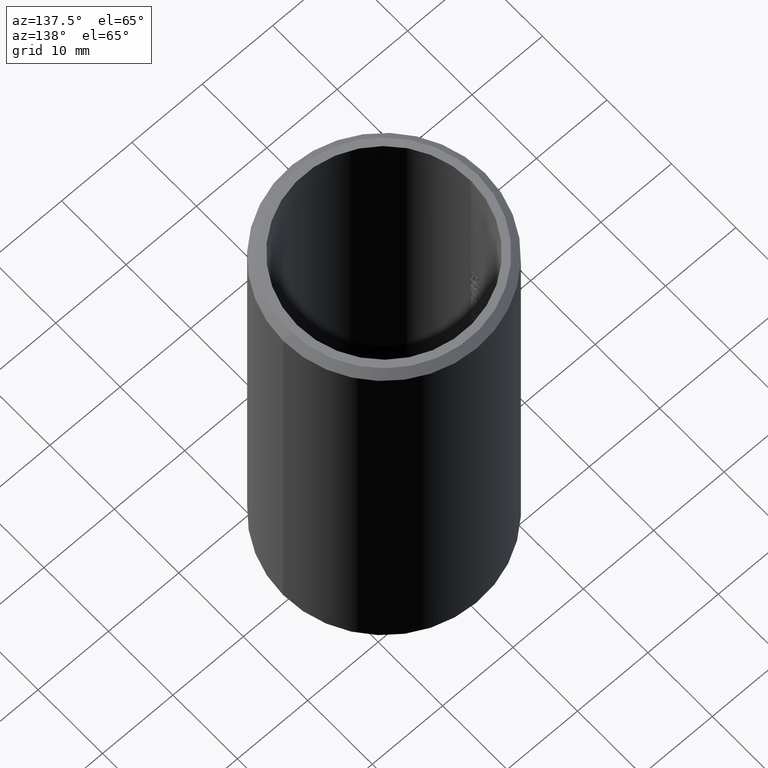
[diagram: clean part render]
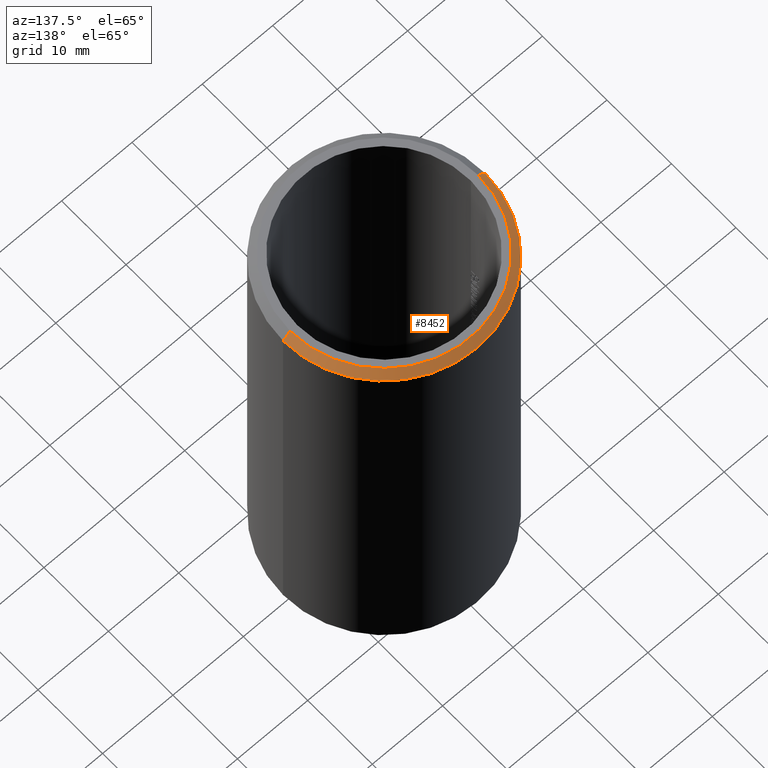
[diagram: same view with one face highlighted and labeled with its STEP entity id]
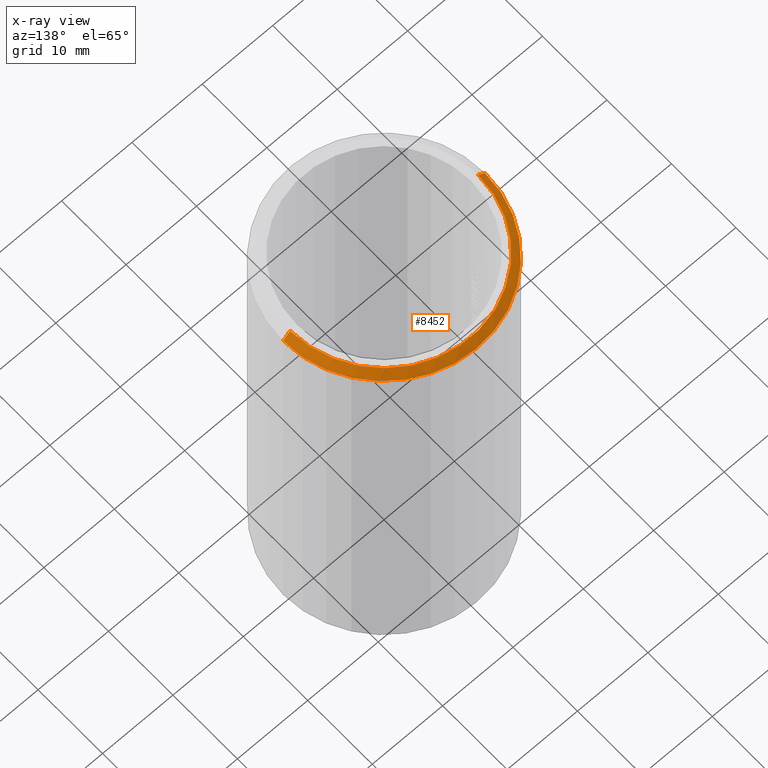
[diagram: x-ray of the same camera — body ghosted, the highlighted face saturated]
A machine part, auxiliary view. The second image highlights one B-rep face of the part: STEP entity #8452.
The next image is the same camera in x-ray: the body ghosted, the highlighted face saturated — about 0% of this face is hidden behind the body in this view.
In plain terms, the highlighted conical surface has half-angle 45 deg.
Its self-contained STEP definition (entity closure, byte-faithful):
#239 = DIRECTION ( 'NONE',  ( -0.7071067811865512400, 0.0000000000000000000, -0.7071067811865439100 ) ) ;
#343 = DIRECTION ( 'NONE',  ( 0.7071067811865512400, 8.659560562354978500E-017, -0.7071067811865439100 ) ) ;
#896 = DIRECTION ( 'NONE',  ( -1.000000000000000000, 0.0000000000000000000, 0.0000000000000000000 ) ) ;
#1088 = CARTESIAN_POINT ( 'NONE',  ( 13.35000000000000000, 1.696135816819084400E-015, 32.50000000000000000 ) ) ;
#1151 = VERTEX_POINT ( 'NONE', #1088 ) ;
#1681 = AXIS2_PLACEMENT_3D ( 'NONE', #14139, #9708, #13072 ) ;
#1891 = CIRCLE ( 'NONE', #1681, 14.35000000000000300 ) ;
#2718 = CIRCLE ( 'NONE', #9297, 13.35000000000000000 ) ;
#2740 = DIRECTION ( 'NONE',  ( 0.0000000000000000000, 0.0000000000000000000, 1.000000000000000000 ) ) ;
#3302 = VERTEX_POINT ( 'NONE', #10549 ) ;
#3430 = AXIS2_PLACEMENT_3D ( 'NONE', #12965, #6346, #896 ) ;
#3749 = VERTEX_POINT ( 'NONE', #12428 ) ;
#3928 = FACE_OUTER_BOUND ( 'NONE', #5669, .T. ) ;
#3968 = ORIENTED_EDGE ( 'NONE', *, *, #4681, .T. ) ;
#4681 = EDGE_CURVE ( 'NONE', #1151, #3749, #9599, .T. ) ;
#4692 = CARTESIAN_POINT ( 'NONE',  ( 13.35000000000000000, 1.634903476861716400E-015, 32.50000000000000000 ) ) ;
#5117 = VECTOR ( 'NONE', #239, 1000.000000000000000 ) ;
#5669 = EDGE_LOOP ( 'NONE', ( #11993, #3968, #8981, #8629 ) ) ;
#5954 = CARTESIAN_POINT ( 'NONE',  ( -14.35000000000000300, 0.0000000000000000000, 31.50000000000000700 ) ) ;
#6346 = DIRECTION ( 'NONE',  ( 0.0000000000000000000, 0.0000000000000000000, -1.000000000000000000 ) ) ;
#6647 = CONICAL_SURFACE ( 'NONE', #3430, 13.35000000000000000, 0.7853981633974533900 ) ;
#6835 = LINE ( 'NONE', #11101, #5117 ) ;
#7004 = DIRECTION ( 'NONE',  ( 1.000000000000000000, 0.0000000000000000000, 0.0000000000000000000 ) ) ;
#7322 = EDGE_CURVE ( 'NONE', #3302, #10517, #6835, .T. ) ;
#8334 = EDGE_CURVE ( 'NONE', #1151, #3302, #2718, .T. ) ;
#8452 = ADVANCED_FACE ( 'NONE', ( #3928 ), #6647, .T. ) ;
#8629 = ORIENTED_EDGE ( 'NONE', *, *, #7322, .F. ) ;
#8981 = ORIENTED_EDGE ( 'NONE', *, *, #10952, .F. ) ;
#9297 = AXIS2_PLACEMENT_3D ( 'NONE', #10323, #2740, #7004 ) ;
#9599 = LINE ( 'NONE', #4692, #11785 ) ;
#9708 = DIRECTION ( 'NONE',  ( 0.0000000000000000000, 0.0000000000000000000, -1.000000000000000000 ) ) ;
#10323 = CARTESIAN_POINT ( 'NONE',  ( 0.0000000000000000000, 0.0000000000000000000, 32.50000000000000000 ) ) ;
#10517 = VERTEX_POINT ( 'NONE', #5954 ) ;
#10549 = CARTESIAN_POINT ( 'NONE',  ( -13.35000000000000000, 0.0000000000000000000, 32.50000000000000000 ) ) ;
#10952 = EDGE_CURVE ( 'NONE', #10517, #3749, #1891, .T. ) ;
#11101 = CARTESIAN_POINT ( 'NONE',  ( -13.35000000000000000, 0.0000000000000000000, 32.50000000000000000 ) ) ;
#11785 = VECTOR ( 'NONE', #343, 1000.000000000000000 ) ;
#11993 = ORIENTED_EDGE ( 'NONE', *, *, #8334, .F. ) ;
#12428 = CARTESIAN_POINT ( 'NONE',  ( 14.35000000000000300, 1.757368156776452400E-015, 31.50000000000000700 ) ) ;
#12965 = CARTESIAN_POINT ( 'NONE',  ( 0.0000000000000000000, 0.0000000000000000000, 32.50000000000000000 ) ) ;
#13072 = DIRECTION ( 'NONE',  ( 1.000000000000000000, 0.0000000000000000000, 0.0000000000000000000 ) ) ;
#14139 = CARTESIAN_POINT ( 'NONE',  ( 0.0000000000000000000, 0.0000000000000000000, 31.50000000000000700 ) ) ;